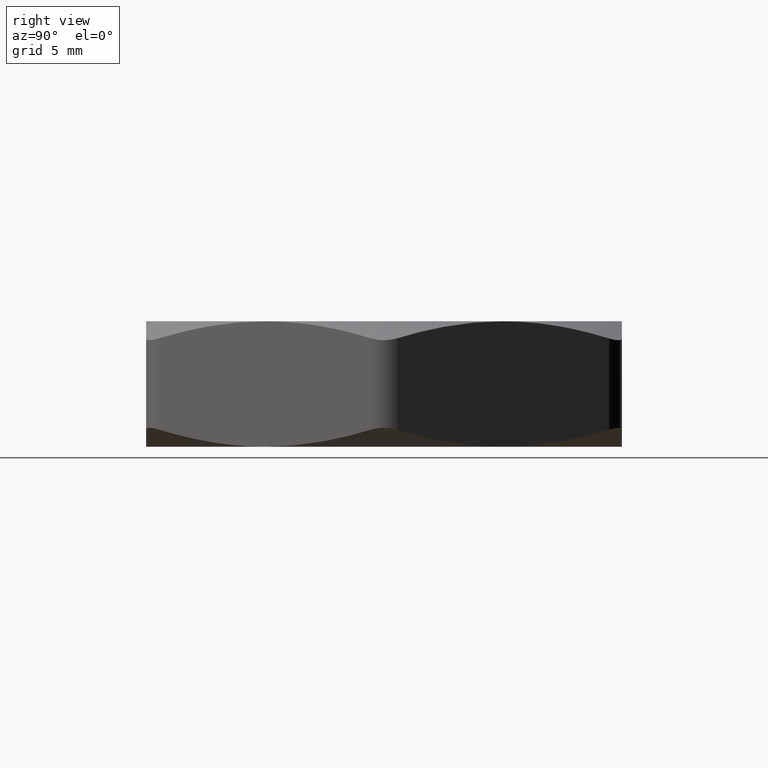
[diagram: clean part render]
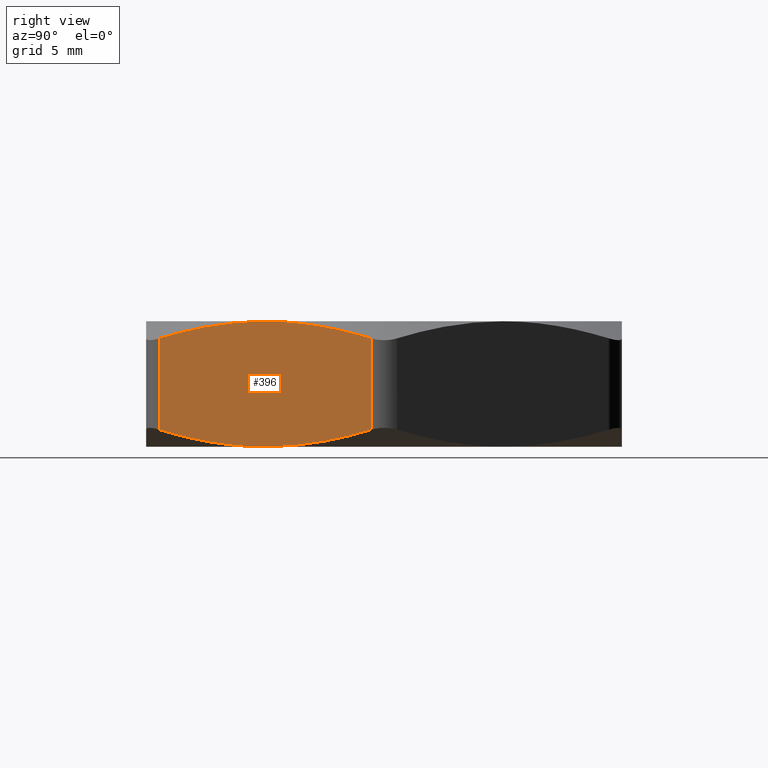
[diagram: same view with one face highlighted and labeled with its STEP entity id]
A machine part, right view. The second image highlights one B-rep face of the part: STEP entity #396.
In plain terms, the highlighted planar face has unit normal (-0.866, 0.5, 0).
Its self-contained STEP definition (entity closure, byte-faithful):
#396 = ADVANCED_FACE ( 'NONE', ( #1502 ), #1510, .F. ) ;
#397 = EDGE_LOOP ( 'NONE', ( #448, #441, #451, #445, #561, #564 ) ) ;
#440 = EDGE_CURVE ( 'NONE', #449, #511, #1557, .T. ) ;
#441 = ORIENTED_EDGE ( 'NONE', *, *, #442, .T. ) ;
#442 = EDGE_CURVE ( 'NONE', #449, #443, #1556, .T. ) ;
#443 = VERTEX_POINT ( 'NONE', #1546 ) ;
#444 = VERTEX_POINT ( 'NONE', #1545 ) ;
#445 = ORIENTED_EDGE ( 'NONE', *, *, #446, .F. ) ;
#446 = EDGE_CURVE ( 'NONE', #447, #444, #1544, .T. ) ;
#447 = VERTEX_POINT ( 'NONE', #1543 ) ;
#448 = ORIENTED_EDGE ( 'NONE', *, *, #440, .F. ) ;
#449 = VERTEX_POINT ( 'NONE', #1542 ) ;
#451 = ORIENTED_EDGE ( 'NONE', *, *, #452, .F. ) ;
#452 = EDGE_CURVE ( 'NONE', #444, #443, #1535, .T. ) ;
#511 = VERTEX_POINT ( 'NONE', #1751 ) ;
#561 = ORIENTED_EDGE ( 'NONE', *, *, #562, .T. ) ;
#562 = EDGE_CURVE ( 'NONE', #447, #563, #1998, .T. ) ;
#563 = VERTEX_POINT ( 'NONE', #1994 ) ;
#564 = ORIENTED_EDGE ( 'NONE', *, *, #565, .F. ) ;
#565 = EDGE_CURVE ( 'NONE', #511, #563, #1993, .T. ) ;
#1497 = DIRECTION ( 'NONE',  ( -0.5000000000000001100, -0.8660254037844386000, 0.0000000000000000000 ) ) ;
#1498 = DIRECTION ( 'NONE',  ( -0.8660254037844386000, 0.5000000000000001100, 0.0000000000000000000 ) ) ;
#1499 = CARTESIAN_POINT ( 'NONE',  ( 0.2626943724812796400, -0.4549999999999999000, 0.2399999999999999900 ) ) ;
#1502 = FACE_OUTER_BOUND ( 'NONE', #397, .T. ) ;
#1510 = PLANE ( 'NONE',  #1534 ) ;
#1523 = CARTESIAN_POINT ( 'NONE',  ( 0.5109549882328188200, -0.02499999999999994200, 0.2073414762142324900 ) ) ;
#1524 = CARTESIAN_POINT ( 'NONE',  ( 0.4918480997078176200, -0.05809410169985680000, 0.2174259182177877300 ) ) ;
#1525 = CARTESIAN_POINT ( 'NONE',  ( 0.4725861320703436100, -0.09145680830170929700, 0.2256379058401433200 ) ) ;
#1526 = CARTESIAN_POINT ( 'NONE',  ( 0.4433750602790697500, -0.1420518687877374300, 0.2341148424957000300 ) ) ;
#1527 = CARTESIAN_POINT ( 'NONE',  ( 0.4335849737503690800, -0.1590087960659424800, 0.2362998002525581500 ) ) ;
#1528 = CARTESIAN_POINT ( 'NONE',  ( 0.4138866949049830900, -0.1931272158478104200, 0.2392436842612516700 ) ) ;
#1529 = CARTESIAN_POINT ( 'NONE',  ( 0.4039398436940417900, -0.2103556675204886500, 0.2400000000000003000 ) ) ;
#1530 = CARTESIAN_POINT ( 'NONE',  ( 0.3940415587219195400, -0.2275000000000000100, 0.2399999999999999900 ) ) ;
#1534 = AXIS2_PLACEMENT_3D ( 'NONE', #1499, #1498, #1497 ) ;
#1535 = B_SPLINE_CURVE_WITH_KNOTS ( 'NONE', 3,
 ( #1530, #1529, #1528, #1527, #1526, #1525, #1524, #1523 ),
 .UNSPECIFIED., .F., .F.,
 ( 4, 2, 2, 4 ),
 ( 0.006751651584641396900, 0.008244823521400893000, 0.009737995458160390900, 0.01272433933167938000 ),
 .UNSPECIFIED. ) ;
#1536 = CARTESIAN_POINT ( 'NONE',  ( 0.3940415587219195400, -0.2275000000000000100, 0.2399999999999999900 ) ) ;
#1537 = CARTESIAN_POINT ( 'NONE',  ( 0.3741650461296615000, -0.2619271296870736000, 0.2400000000000003800 ) ) ;
#1538 = CARTESIAN_POINT ( 'NONE',  ( 0.3545074000024738300, -0.2959751715365718200, 0.2369527134420846300 ) ) ;
#1539 = CARTESIAN_POINT ( 'NONE',  ( 0.3155652014642730800, -0.3634250379631702200, 0.2256635415750351000 ) ) ;
#1540 = CARTESIAN_POINT ( 'NONE',  ( 0.2962786875227257900, -0.3968302600108155100, 0.2174489667340724900 ) ) ;
#1541 = CARTESIAN_POINT ( 'NONE',  ( 0.2771281292110277500, -0.4299999999999870600, 0.2073414762142365400 ) ) ;
#1542 = CARTESIAN_POINT ( 'NONE',  ( 0.5109549882328113800, -0.02500000000001277200, 0.03265852378576353200 ) ) ;
#1543 = CARTESIAN_POINT ( 'NONE',  ( 0.2771281292110277500, -0.4299999999999870600, 0.2073414762142365400 ) ) ;
#1544 = B_SPLINE_CURVE_WITH_KNOTS ( 'NONE', 3,
 ( #1541, #1540, #1539, #1538, #1537, #1536 ),
 .UNSPECIFIED., .F., .F.,
 ( 4, 2, 4 ),
 ( 0.0007548448879267518300, 0.003753248236284074200, 0.006751651584641396900 ),
 .UNSPECIFIED. ) ;
#1545 = CARTESIAN_POINT ( 'NONE',  ( 0.3940415587219195400, -0.2275000000000000100, 0.2399999999999999900 ) ) ;
#1546 = CARTESIAN_POINT ( 'NONE',  ( 0.5109549882328188200, -0.02499999999999994200, 0.2073414762142324900 ) ) ;
#1547 = DIRECTION ( 'NONE',  ( 0.0000000000000000000, 0.0000000000000000000, 1.000000000000000000 ) ) ;
#1548 = VECTOR ( 'NONE', #1547, 39.37007874015748100 ) ;
#1549 = CARTESIAN_POINT ( 'NONE',  ( 0.3940415587219195900, -0.2275000000000000400, 0.0000000000000000000 ) ) ;
#1550 = CARTESIAN_POINT ( 'NONE',  ( 0.4139180713141776300, -0.1930728703129263900, -3.377460507791950300E-016 ) ) ;
#1551 = CARTESIAN_POINT ( 'NONE',  ( 0.4335757174413651400, -0.1590248284634281400, 0.003047286557915332200 ) ) ;
#1552 = CARTESIAN_POINT ( 'NONE',  ( 0.4725179159795662200, -0.09157496203682959100, 0.01433645842496504200 ) ) ;
#1553 = CARTESIAN_POINT ( 'NONE',  ( 0.4918044299211133400, -0.05816973998918444100, 0.02255103326592755900 ) ) ;
#1554 = CARTESIAN_POINT ( 'NONE',  ( 0.5109549882328113800, -0.02500000000001277200, 0.03265852378576353200 ) ) ;
#1555 = CARTESIAN_POINT ( 'NONE',  ( 0.5109549882328188200, -0.02499999999999987000, 0.2399999999999999900 ) ) ;
#1556 = LINE ( 'NONE', #1555, #1548 ) ;
#1557 = B_SPLINE_CURVE_WITH_KNOTS ( 'NONE', 3,
 ( #1554, #1553, #1552, #1551, #1550, #1549 ),
 .UNSPECIFIED., .F., .F.,
 ( 4, 2, 4 ),
 ( 0.0007548448879267506400, 0.003753248236284077200, 0.006751651584641402100 ),
 .UNSPECIFIED. ) ;
#1751 = CARTESIAN_POINT ( 'NONE',  ( 0.3940415587219195900, -0.2275000000000000400, 0.0000000000000000000 ) ) ;
#1984 = CARTESIAN_POINT ( 'NONE',  ( 0.2771281292110202600, -0.4299999999999999400, 0.03265852378576748800 ) ) ;
#1985 = CARTESIAN_POINT ( 'NONE',  ( 0.2962350177360212900, -0.3969058983001432200, 0.02257408178221228400 ) ) ;
#1986 = CARTESIAN_POINT ( 'NONE',  ( 0.3154969853734954100, -0.3635431916982908000, 0.01436209415985673300 ) ) ;
#1987 = CARTESIAN_POINT ( 'NONE',  ( 0.3447080571647692700, -0.3129481312122626100, 0.005885157504299976100 ) ) ;
#1988 = CARTESIAN_POINT ( 'NONE',  ( 0.3544981436934698800, -0.2959912039340575300, 0.003700199747441828000 ) ) ;
#1989 = CARTESIAN_POINT ( 'NONE',  ( 0.3741964225388558800, -0.2618727841521895600, 0.0007563157387482393600 ) ) ;
#1990 = CARTESIAN_POINT ( 'NONE',  ( 0.3841432737497971800, -0.2446443324795112800, -3.391466564400092400E-016 ) ) ;
#1991 = CARTESIAN_POINT ( 'NONE',  ( 0.3940415587219195900, -0.2275000000000000400, 0.0000000000000000000 ) ) ;
#1993 = B_SPLINE_CURVE_WITH_KNOTS ( 'NONE', 3,
 ( #1991, #1990, #1989, #1988, #1987, #1986, #1985, #1984 ),
 .UNSPECIFIED., .F., .F.,
 ( 4, 2, 2, 4 ),
 ( 0.006751651584641402100, 0.008244823521400898200, 0.009737995458160394300, 0.01272433933167938300 ),
 .UNSPECIFIED. ) ;
#1994 = CARTESIAN_POINT ( 'NONE',  ( 0.2771281292110202600, -0.4299999999999999400, 0.03265852378576748800 ) ) ;
#1995 = DIRECTION ( 'NONE',  ( 0.0000000000000000000, 0.0000000000000000000, -1.000000000000000000 ) ) ;
#1996 = VECTOR ( 'NONE', #1995, 39.37007874015748100 ) ;
#1997 = CARTESIAN_POINT ( 'NONE',  ( 0.2771281292110203100, -0.4299999999999999400, 0.2399999999999999900 ) ) ;
#1998 = LINE ( 'NONE', #1997, #1996 ) ;